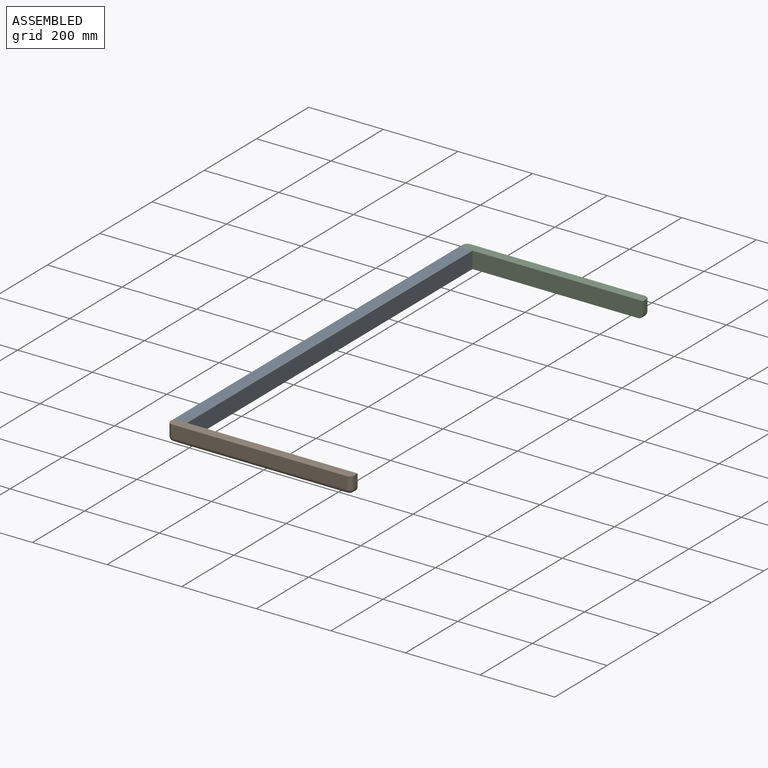
[diagram: assembled view]
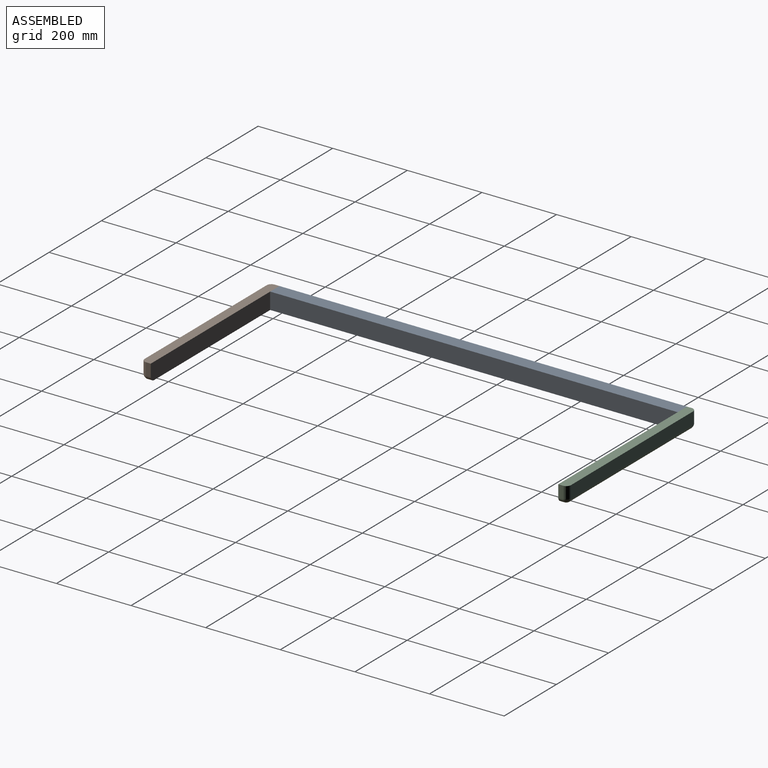
[diagram: assembled view, second angle]
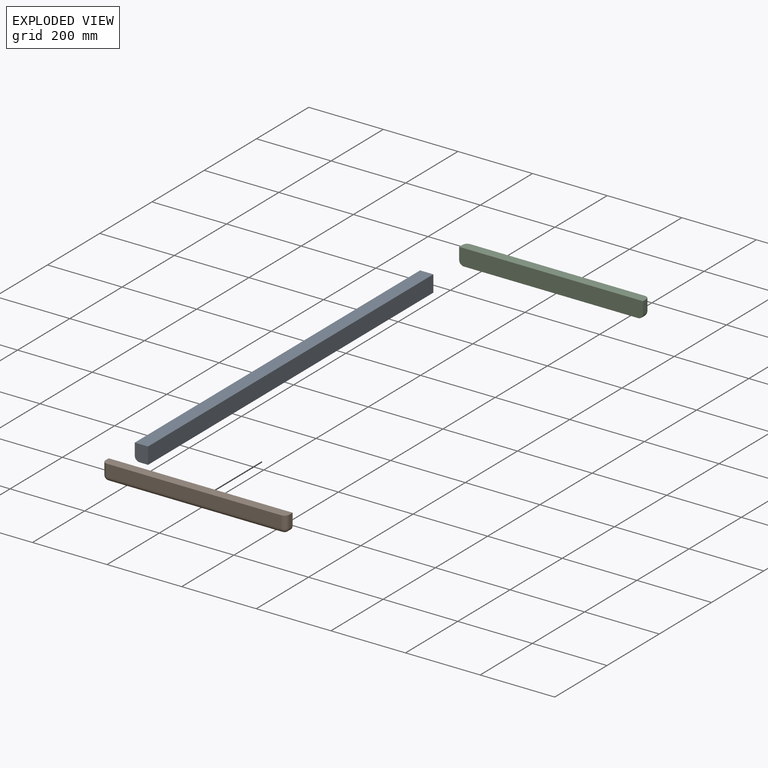
[diagram: exploded view]
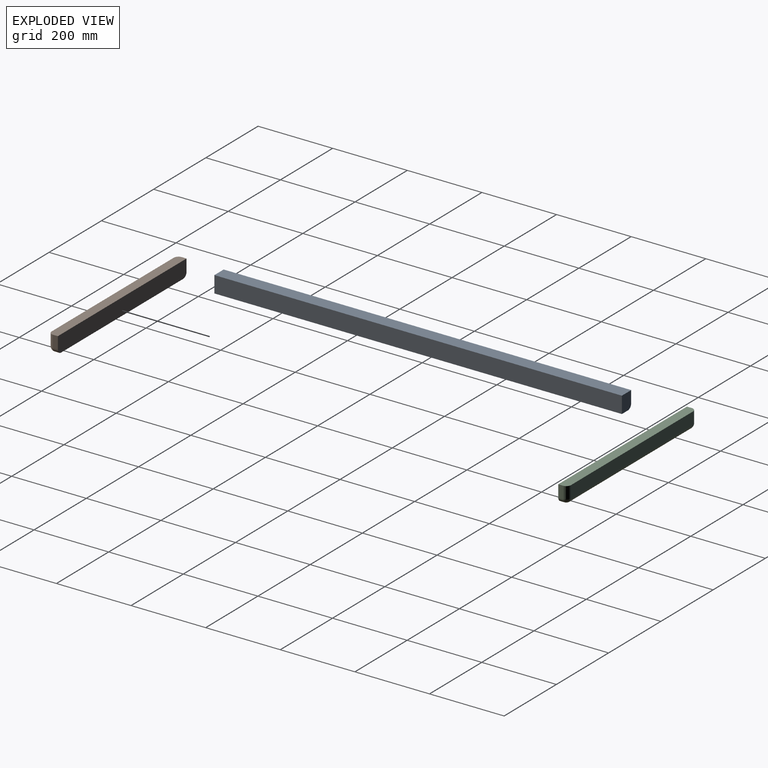
[diagram: exploded view, second angle]
ASSEMBLY  parts=3 mates=2
PART A: 7 faces, bbox 1092.2x35.6x44.5 mm
  f0: plane 1092.2x31.75mm, normal (0,-1,0), area 34677.4mm2, adj f1,f3,f5,f6
  f1: plane 44.45x35.56mm, normal (1,0,0), area 1546mm2, adj f0,f2,f4,f5,f6
  f2: plane 1092.2x44.45mm, normal (0,1,0), area 48548.3mm2, adj f1,f3,f4,f5
  f3: plane 44.45x35.56mm, normal (-1,0,0), area 1546mm2, adj f0,f2,f4,f5,f6
  f4: plane 1092.2x22.86mm, normal (0,0,-1), area 24967.7mm2, adj f1,f2,f3,f6
  f5: plane 1092.2x35.56mm, normal (0,0,1), area 38838.6mm2, adj f0,f1,f2,f3
  f6: cylinder r=12.7mm len=1092.2mm, axis (-1,0,0), area 21788.4mm2, adj f0,f1,f3,f4
PART B: 13 faces, bbox 492.8x25.4x44.5 mm
  f0: plane 492.76x44.45mm, normal (0,1,0), area 21834mm2, adj f1,f3,f4,f5,f7,f10
  f1: plane 31.75x12.7mm, normal (-1,0,0), area 403.2mm2, adj f0,f5,f10,f12
  f2: plane 467.36x31.75mm, normal (0,-1,0), area 14838.7mm2, adj f5,f6,f9,f12
  f3: plane 31.75x12.7mm, normal (1,0,0), area 403.2mm2, adj f0,f5,f6,f7
  f4: plane 467.36x12.7mm, normal (0,0,-1), area 5935.5mm2, adj f0,f7,f9,f10
  f5: plane 492.76x25.4mm, normal (0,0,1), area 12446.9mm2, adj f0,f1,f2,f3,f6,f12
  f6: cylinder r=12.7mm len=31.75mm, axis (0,0,-1), area 633.4mm2, adj f2,f3,f5,f8
  f7: cylinder r=12.7mm len=12.7mm, axis (0,-1,0), area 253.4mm2, adj f0,f3,f4,f8
  f8: sphere r=12.7mm, area 253.4mm2, adj f6,f7,f9
  f9: cylinder r=12.7mm len=467.36mm, axis (-1,0,0), area 9323.4mm2, adj f2,f4,f8,f11
  f10: cylinder r=12.7mm len=12.7mm, axis (0,1,0), area 253.4mm2, adj f0,f1,f4,f11
  f11: sphere r=12.7mm, area 253.4mm2, adj f9,f10,f12
  f12: cylinder r=12.7mm len=31.75mm, axis (0,0,1), area 633.4mm2, adj f1,f2,f5,f11
PART C: same geometry as B
PLACE A rot(axis=(0,0,-1),90deg) t=(1781.49,220.12,285.46)mm
PLACE B t=(94.35,-1020.49,285.46)mm
PLACE C rot(axis=(0,0,1),180deg) t=(1526.66,-302.26,285.46)mm
MATE fastened A.f1 <-> B.f0  axis (0,-1,0) through (564.12,-1207.48,285.46)mm
MATE fastened C.f0 <-> A.f3  axis (0,-1,0) through (564.12,-115.28,285.46)mm
